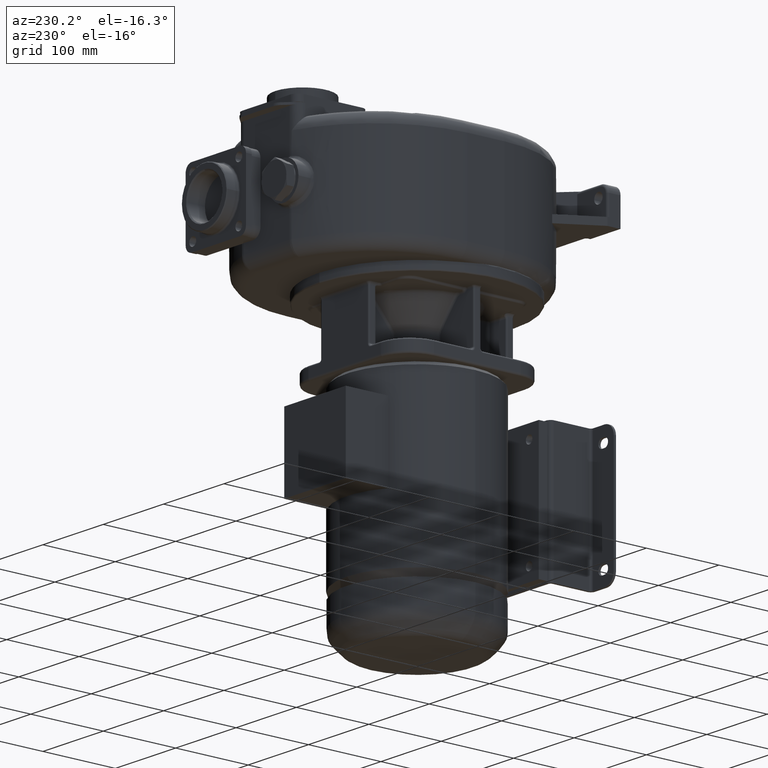
[diagram: clean part render]
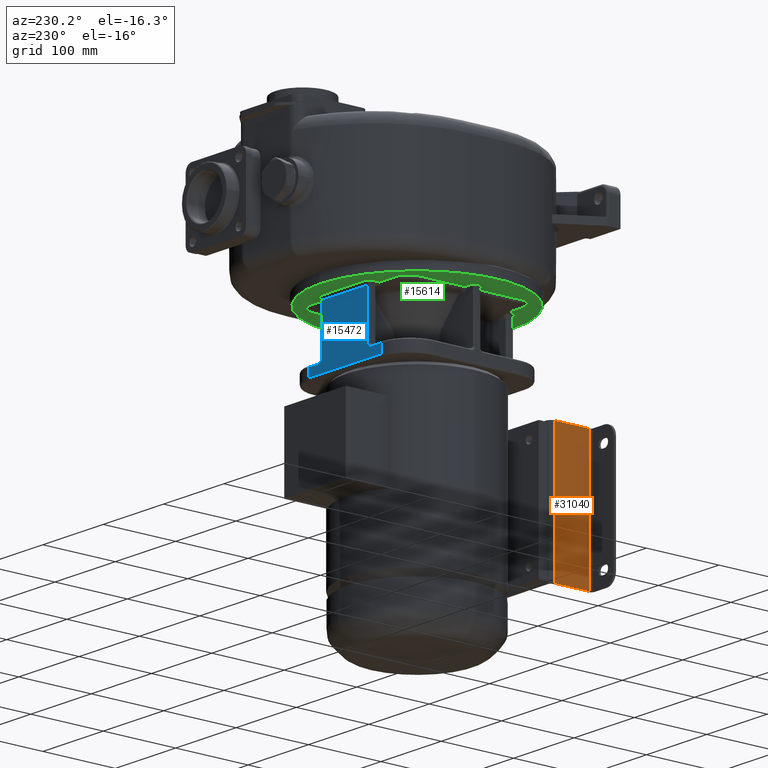
[diagram: same view with three faces highlighted in distinct colors, each labeled with its STEP entity id]
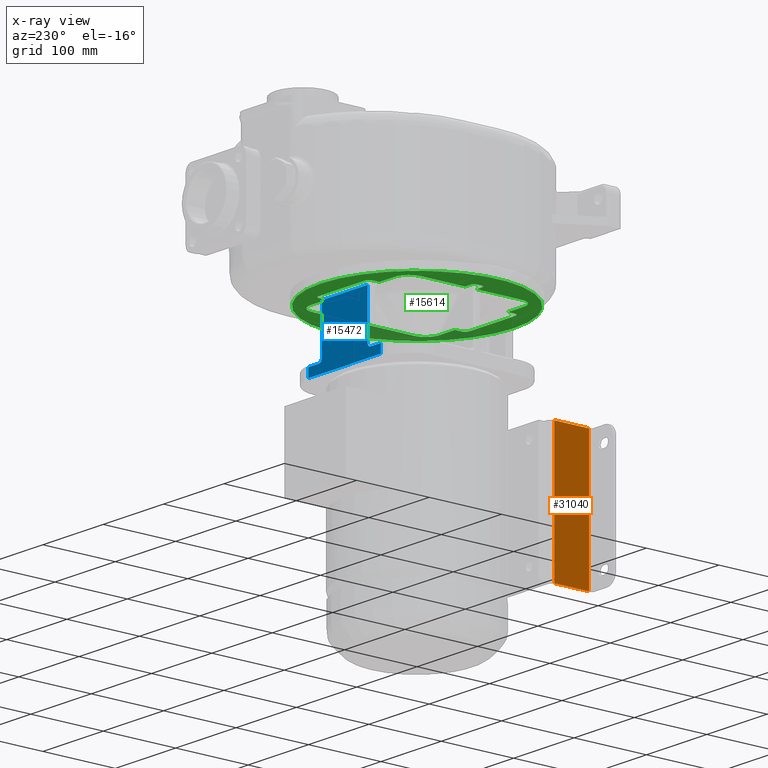
[diagram: x-ray of the same camera — body ghosted, the three highlighted faces saturated]
A machine part, auxiliary view with three faces highlighted in distinct colors.
The next image is the same camera in x-ray (body ghosted, the three faces saturated) — at least one of them is partly hidden behind the body in this view.
Their STEP definitions:

[orange] entity #31040 — the highlighted planar face has unit normal (-1, 0, 0).
#12520=DIRECTION('',(0.E0,-1.E0,0.E0));
#12521=VECTOR('',#12520,4.8E1);
#12522=CARTESIAN_POINT('',(-1.E2,-1.06E2,-2.23E2));
#12523=LINE('',#12522,#12521);
#12532=DIRECTION('',(0.E0,0.E0,1.E0));
#12533=VECTOR('',#12532,1.8E2);
#12534=CARTESIAN_POINT('',(-1.E2,-1.06E2,-2.23E2));
#12535=LINE('',#12534,#12533);
#12536=DIRECTION('',(0.E0,-1.E0,0.E0));
#12537=VECTOR('',#12536,4.8E1);
#12538=CARTESIAN_POINT('',(-1.E2,-1.06E2,-4.3E1));
#12539=LINE('',#12538,#12537);
#12570=DIRECTION('',(0.E0,0.E0,1.E0));
#12571=VECTOR('',#12570,1.8E2);
#12572=CARTESIAN_POINT('',(-1.E2,-1.54E2,-2.23E2));
#12573=LINE('',#12572,#12571);
#13334=CARTESIAN_POINT('',(-1.E2,-1.06E2,-2.23E2));
#13335=VERTEX_POINT('',#13334);
#13336=CARTESIAN_POINT('',(-1.E2,-1.54E2,-2.23E2));
#13337=VERTEX_POINT('',#13336);
#13350=CARTESIAN_POINT('',(-1.E2,-1.06E2,-4.3E1));
#13351=VERTEX_POINT('',#13350);
#13352=CARTESIAN_POINT('',(-1.E2,-1.54E2,-4.3E1));
#13353=VERTEX_POINT('',#13352);
#31027=CARTESIAN_POINT('',(-1.E2,-1.06E2,-2.23E2));
#31028=DIRECTION('',(-1.E0,0.E0,0.E0));
#31029=DIRECTION('',(0.E0,-1.E0,0.E0));
#31030=AXIS2_PLACEMENT_3D('',#31027,#31028,#31029);
#31031=PLANE('',#31030);
#31032=ORIENTED_EDGE('',*,*,#31017,.F.);
#31033=ORIENTED_EDGE('',*,*,#30750,.T.);
#31035=ORIENTED_EDGE('',*,*,#31034,.T.);
#31037=ORIENTED_EDGE('',*,*,#31036,.F.);
#31038=EDGE_LOOP('',(#31032,#31033,#31035,#31037));
#31039=FACE_OUTER_BOUND('',#31038,.F.);
#31040=ADVANCED_FACE('',(#31039),#31031,.T.);
#30750=EDGE_CURVE('',#13335,#13351,#12535,.T.);
#31017=EDGE_CURVE('',#13335,#13337,#12523,.T.);
#31034=EDGE_CURVE('',#13351,#13353,#12539,.T.);
#31036=EDGE_CURVE('',#13337,#13353,#12573,.T.);

[blue] entity #15472 — the highlighted planar face has unit normal (0, 1, 0).
#620=DIRECTION('',(-1.E0,0.E0,-1.035929512112E-12));
#621=VECTOR('',#620,1.699999999991E1);
#622=CARTESIAN_POINT('',(-4.300000000008E1,1.E2,1.300000000002E1));
#623=LINE('',#622,#621);
#624=DIRECTION('',(-3.268496584496E-13,0.E0,-1.E0));
#625=VECTOR('',#624,1.2E1);
#626=CARTESIAN_POINT('',(-5.999999999999E1,1.E2,1.3E1));
#627=LINE('',#626,#625);
#628=DIRECTION('',(1.E0,0.E0,0.E0));
#629=VECTOR('',#628,1.2E2);
#630=CARTESIAN_POINT('',(-6.E1,1.E2,1.E0));
#631=LINE('',#630,#629);
#632=DIRECTION('',(-1.E0,0.E0,2.068724276869E-12));
#633=VECTOR('',#632,1.699999999984E1);
#634=CARTESIAN_POINT('',(6.E1,1.E2,1.3E1));
#635=LINE('',#634,#633);
#636=CARTESIAN_POINT('',(4.3E1,1.E2,1.8E1));
#637=DIRECTION('',(0.E0,1.E0,0.E0));
#638=DIRECTION('',(0.E0,0.E0,-1.E0));
#639=AXIS2_PLACEMENT_3D('',#636,#637,#638);
#641=DIRECTION('',(1.854072451126E-13,0.E0,1.E0));
#642=VECTOR('',#641,6.399999999992E1);
#643=CARTESIAN_POINT('',(3.800000000002E1,1.E2,1.800000000008E1));
#644=LINE('',#643,#642);
#645=DIRECTION('',(1.E0,0.E0,0.E0));
#646=VECTOR('',#645,7.600000000003E1);
#647=CARTESIAN_POINT('',(-3.800000000001E1,1.E2,8.2E1));
#648=LINE('',#647,#646);
#649=DIRECTION('',(-3.597122599795E-13,0.E0,-1.E0));
#650=VECTOR('',#649,6.399999999983E1);
#651=CARTESIAN_POINT('',(-3.800000000001E1,1.E2,8.2E1));
#652=LINE('',#651,#650);
#653=CARTESIAN_POINT('',(-4.3E1,1.E2,1.8E1));
#654=DIRECTION('',(0.E0,1.E0,0.E0));
#655=DIRECTION('',(1.E0,0.E0,0.E0));
#656=AXIS2_PLACEMENT_3D('',#653,#654,#655);
#8334=DIRECTION('',(-1.657933050107E-13,0.E0,-1.E0));
#8335=VECTOR('',#8334,1.2E1);
#8336=CARTESIAN_POINT('',(6.E1,1.E2,1.3E1));
#8337=LINE('',#8336,#8335);
#13800=CARTESIAN_POINT('',(-6.E1,1.E2,1.E0));
#13802=VERTEX_POINT('',#13800);
#13805=CARTESIAN_POINT('',(6.E1,1.E2,1.E0));
#13806=VERTEX_POINT('',#13805);
#14098=CARTESIAN_POINT('',(6.E1,1.E2,1.3E1));
#14099=VERTEX_POINT('',#14098);
#14104=CARTESIAN_POINT('',(-4.300000000008E1,1.E2,1.300000000002E1));
#14105=CARTESIAN_POINT('',(-5.999999999999E1,1.E2,1.3E1));
#14106=VERTEX_POINT('',#14104);
#14107=VERTEX_POINT('',#14105);
#14112=CARTESIAN_POINT('',(4.3E1,1.E2,1.3E1));
#14113=CARTESIAN_POINT('',(3.8E1,1.E2,1.8E1));
#14114=VERTEX_POINT('',#14112);
#14115=VERTEX_POINT('',#14113);
#14116=CARTESIAN_POINT('',(3.800000000003E1,1.E2,8.2E1));
#14117=VERTEX_POINT('',#14116);
#14128=CARTESIAN_POINT('',(-3.800000000001E1,1.E2,8.2E1));
#14129=VERTEX_POINT('',#14128);
#14170=CARTESIAN_POINT('',(-3.800000000003E1,1.E2,1.800000000017E1));
#14171=VERTEX_POINT('',#14170);
#15447=CARTESIAN_POINT('',(-6.E1,1.E2,1.5E1));
#15448=DIRECTION('',(0.E0,1.E0,0.E0));
#15449=DIRECTION('',(1.E0,0.E0,0.E0));
#15450=AXIS2_PLACEMENT_3D('',#15447,#15448,#15449);
#15451=PLANE('',#15450);
#15453=ORIENTED_EDGE('',*,*,#15452,.T.);
#15454=ORIENTED_EDGE('',*,*,#15441,.T.);
#15455=ORIENTED_EDGE('',*,*,#15121,.T.);
#15457=ORIENTED_EDGE('',*,*,#15456,.F.);
#15459=ORIENTED_EDGE('',*,*,#15458,.T.);
#15461=ORIENTED_EDGE('',*,*,#15460,.T.);
#15463=ORIENTED_EDGE('',*,*,#15462,.T.);
#15465=ORIENTED_EDGE('',*,*,#15464,.F.);
#15467=ORIENTED_EDGE('',*,*,#15466,.T.);
#15469=ORIENTED_EDGE('',*,*,#15468,.T.);
#15470=EDGE_LOOP('',(#15453,#15454,#15455,#15457,#15459,#15461,#15463,#15465,
#15467,#15469));
#15471=FACE_OUTER_BOUND('',#15470,.F.);
#15472=ADVANCED_FACE('',(#15471),#15451,.T.);
#640=CIRCLE('',#639,5.E0);
#657=CIRCLE('',#656,5.E0);
#15121=EDGE_CURVE('',#13802,#13806,#631,.T.);
#15441=EDGE_CURVE('',#14107,#13802,#627,.T.);
#15452=EDGE_CURVE('',#14106,#14107,#623,.T.);
#15456=EDGE_CURVE('',#14099,#13806,#8337,.T.);
#15458=EDGE_CURVE('',#14099,#14114,#635,.T.);
#15460=EDGE_CURVE('',#14114,#14115,#640,.T.);
#15462=EDGE_CURVE('',#14115,#14117,#644,.T.);
#15464=EDGE_CURVE('',#14129,#14117,#648,.T.);
#15466=EDGE_CURVE('',#14129,#14171,#652,.T.);
#15468=EDGE_CURVE('',#14171,#14106,#657,.T.);

[green] entity #15614 — the highlighted planar face has unit normal (0, 0, -1).
#512=CARTESIAN_POINT('',(-9.8E1,-3.E0,8.6E1));
#513=DIRECTION('',(0.E0,0.E0,1.E0));
#514=DIRECTION('',(-1.E0,0.E0,0.E0));
#515=AXIS2_PLACEMENT_3D('',#512,#513,#514);
#532=CARTESIAN_POINT('',(-9.8E1,3.E0,8.6E1));
#533=DIRECTION('',(0.E0,0.E0,1.E0));
#534=DIRECTION('',(0.E0,1.E0,0.E0));
#535=AXIS2_PLACEMENT_3D('',#532,#533,#534);
#673=CARTESIAN_POINT('',(-3.8E1,9.8E1,8.6E1));
#674=DIRECTION('',(0.E0,0.E0,1.E0));
#675=DIRECTION('',(0.E0,1.E0,0.E0));
#676=AXIS2_PLACEMENT_3D('',#673,#674,#675);
#688=CARTESIAN_POINT('',(0.E0,0.E0,8.6E1));
#689=DIRECTION('',(0.E0,0.E0,1.E0));
#690=DIRECTION('',(0.E0,-1.E0,0.E0));
#691=AXIS2_PLACEMENT_3D('',#688,#689,#690);
#693=CARTESIAN_POINT('',(0.E0,0.E0,8.6E1));
#694=DIRECTION('',(0.E0,0.E0,1.E0));
#695=DIRECTION('',(0.E0,1.E0,0.E0));
#696=AXIS2_PLACEMENT_3D('',#693,#694,#695);
#698=DIRECTION('',(-1.E0,3.686999294781E-12,0.E0));
#699=VECTOR('',#698,9.127016653686E0);
#700=CARTESIAN_POINT('',(-8.887298334632E1,-8.E0,8.6E1));
#701=LINE('',#700,#699);
#702=DIRECTION('',(0.E0,1.E0,0.E0));
#703=VECTOR('',#702,5.999999999744E0);
#704=CARTESIAN_POINT('',(-1.03E2,-2.999999999871E0,8.6E1));
#705=LINE('',#704,#703);
#706=DIRECTION('',(1.E0,3.695076283312E-12,0.E0));
#707=VECTOR('',#706,9.127016653686E0);
#708=CARTESIAN_POINT('',(-9.800000000001E1,7.999999999966E0,8.6E1));
#709=LINE('',#708,#707);
#710=DIRECTION('',(1.810279524849E-12,1.E0,3.169868668626E-11));
#711=VECTOR('',#710,6.2E1);
#712=CARTESIAN_POINT('',(-8.887298334632E1,8.E0,8.6E1));
#713=LINE('',#712,#711);
#714=CARTESIAN_POINT('',(-8.887298334621E1,7.E1,8.600000000197E1));
#715=CARTESIAN_POINT('',(-8.887298292462E1,7.019225124129E1,8.600000022585E1));
#716=CARTESIAN_POINT('',(-8.886705014984E1,7.057716331394E1,8.599999989518E1));
#717=CARTESIAN_POINT('',(-8.884025804156E1,7.115620261269E1,8.600000002809E1));
#718=CARTESIAN_POINT('',(-8.879552366989E1,7.173558585011E1,8.599999999247E1));
#719=CARTESIAN_POINT('',(-8.873284137816E1,7.231447865814E1,8.600000000202E1));
#720=CARTESIAN_POINT('',(-8.865225597103E1,7.289195622053E1,8.599999999946E1));
#721=CARTESIAN_POINT('',(-8.855387021405E1,7.346712001126E1,8.600000000014E1));
#722=CARTESIAN_POINT('',(-8.843781111431E1,7.403913870114E1,8.599999999996E1));
#723=CARTESIAN_POINT('',(-8.830423424323E1,7.460723321140E1,8.600000000001E1));
#724=CARTESIAN_POINT('',(-8.815336211327E1,7.517047755815E1,8.6E1));
#725=CARTESIAN_POINT('',(-8.798553105066E1,7.572772744575E1,8.6E1));
#726=CARTESIAN_POINT('',(-8.780121349157E1,7.627778160958E1,8.6E1));
#727=CARTESIAN_POINT('',(-8.760053526486E1,7.682065004056E1,8.6E1));
#728=CARTESIAN_POINT('',(-8.738340615376E1,7.735656464176E1,8.6E1));
#729=CARTESIAN_POINT('',(-8.714971080429E1,7.788568805756E1,8.6E1));
#730=CARTESIAN_POINT('',(-8.689944965330E1,7.840820050466E1,8.6E1));
#731=CARTESIAN_POINT('',(-8.663240281648E1,7.892436997928E1,8.6E1));
#732=CARTESIAN_POINT('',(-8.634883306993E1,7.943340845090E1,8.6E1));
#733=CARTESIAN_POINT('',(-8.604931954349E1,7.993413887225E1,8.6E1));
#734=CARTESIAN_POINT('',(-8.573443577222E1,8.042559295013E1,8.6E1));
#735=CARTESIAN_POINT('',(-8.540458024301E1,8.090714638285E1,8.6E1));
#736=CARTESIAN_POINT('',(-8.506015704084E1,8.137821111602E1,8.6E1));
#737=CARTESIAN_POINT('',(-8.470177645221E1,8.183795610154E1,8.6E1));
#738=CARTESIAN_POINT('',(-8.433024982269E1,8.228541537491E1,8.6E1));
#739=CARTESIAN_POINT('',(-8.394640011537E1,8.271978884581E1,8.6E1));
#740=CARTESIAN_POINT('',(-8.355014926610E1,8.314133014853E1,8.6E1));
#741=CARTESIAN_POINT('',(-8.314132958331E1,8.355014976978E1,8.6E1));
#742=CARTESIAN_POINT('',(-8.271978862477E1,8.394640029533E1,8.6E1));
#743=CARTESIAN_POINT('',(-8.228541487756E1,8.433025028680E1,8.6E1));
#744=CARTESIAN_POINT('',(-8.183795472522E1,8.470177758588E1,8.6E1));
#745=CARTESIAN_POINT('',(-8.137820941363E1,8.506015830779E1,8.6E1));
#746=CARTESIAN_POINT('',(-8.090714489795E1,8.540458127587E1,8.6E1));
#747=CARTESIAN_POINT('',(-8.042559147485E1,8.573443673629E1,8.6E1));
#748=CARTESIAN_POINT('',(-7.993413735305E1,8.604932048566E1,8.6E1));
#749=CARTESIAN_POINT('',(-7.943340728063E1,8.634883377123E1,8.6E1));
#750=CARTESIAN_POINT('',(-7.892436962438E1,8.663240303351E1,8.6E1));
#751=CARTESIAN_POINT('',(-7.840820053559E1,8.689944962592E1,8.6E1));
#752=CARTESIAN_POINT('',(-7.788568819629E1,8.714971065549E1,8.6E1));
#753=CARTESIAN_POINT('',(-7.735656481633E1,8.738340602882E1,8.6E1));
#754=CARTESIAN_POINT('',(-7.682065020923E1,8.760053529485E1,8.6E1));
#755=CARTESIAN_POINT('',(-7.627778174463E1,8.780121347832E1,8.6E1));
#756=CARTESIAN_POINT('',(-7.572772823508E1,8.798553076626E1,8.6E1));
#757=CARTESIAN_POINT('',(-7.517047844222E1,8.815336183892E1,8.6E1));
#758=CARTESIAN_POINT('',(-7.460723363633E1,8.830423414197E1,8.600000000001E1));
#759=CARTESIAN_POINT('',(-7.403913876314E1,8.843781111229E1,8.599999999996E1));
#760=CARTESIAN_POINT('',(-7.346712009308E1,8.855387020475E1,8.600000000014E1));
#761=CARTESIAN_POINT('',(-7.289195638377E1,8.865225594360E1,8.599999999946E1));
#762=CARTESIAN_POINT('',(-7.231447877152E1,8.873284135930E1,8.600000000201E1));
#763=CARTESIAN_POINT('',(-7.173558586095E1,8.879552366713E1,8.599999999250E1));
#764=CARTESIAN_POINT('',(-7.115620256062E1,8.884025804686E1,8.600000002798E1));
#765=CARTESIAN_POINT('',(-7.057716327422E1,8.886705014757E1,8.599999989556E1));
#766=CARTESIAN_POINT('',(-7.019225122372E1,8.887298291935E1,8.600000022503E1));
#767=CARTESIAN_POINT('',(-7.E1,8.887298334621E1,8.600000000191E1));
#769=DIRECTION('',(1.E0,5.885480137434E-12,-7.363900942017E-11));
#770=VECTOR('',#769,2.6E1);
#771=CARTESIAN_POINT('',(-7.E1,8.887298334621E1,8.600000000191E1));
#772=LINE('',#771,#770);
#773=DIRECTION('',(2.087171686907E-12,1.E0,0.E0));
#774=VECTOR('',#773,9.127016653792E0);
#775=CARTESIAN_POINT('',(-4.4E1,8.887298334636E1,8.6E1));
#776=LINE('',#775,#774);
#777=DIRECTION('',(1.E0,0.E0,0.E0));
#778=VECTOR('',#777,7.600000000001E1);
#779=CARTESIAN_POINT('',(-3.800000000001E1,1.04E2,8.6E1));
#780=LINE('',#779,#778);
#781=DIRECTION('',(2.090285706582E-12,-1.E0,0.E0));
#782=VECTOR('',#781,9.127016653793E0);
#783=CARTESIAN_POINT('',(4.399999999998E1,9.800000000015E1,8.6E1));
#784=LINE('',#783,#782);
#785=DIRECTION('',(1.E0,-5.886573280105E-12,7.558917594417E-11));
#786=VECTOR('',#785,2.6E1);
#787=CARTESIAN_POINT('',(4.4E1,8.887298334636E1,8.6E1));
#788=LINE('',#787,#786);
#789=CARTESIAN_POINT('',(7.E1,8.887298334621E1,8.600000000197E1));
#790=CARTESIAN_POINT('',(7.019225124129E1,8.887298292462E1,8.600000022585E1));
#791=CARTESIAN_POINT('',(7.057716331394E1,8.886705014984E1,8.599999989518E1));
#792=CARTESIAN_POINT('',(7.115620261269E1,8.884025804156E1,8.600000002809E1));
#793=CARTESIAN_POINT('',(7.173558585011E1,8.879552366989E1,8.599999999247E1));
#794=CARTESIAN_POINT('',(7.231447865814E1,8.873284137816E1,8.600000000202E1));
#795=CARTESIAN_POINT('',(7.289195622053E1,8.865225597103E1,8.599999999946E1));
#796=CARTESIAN_POINT('',(7.346712001126E1,8.855387021405E1,8.600000000014E1));
#797=CARTESIAN_POINT('',(7.403913870114E1,8.843781111431E1,8.599999999996E1));
#798=CARTESIAN_POINT('',(7.460723321140E1,8.830423424323E1,8.600000000001E1));
#799=CARTESIAN_POINT('',(7.517047755815E1,8.815336211327E1,8.6E1));
#800=CARTESIAN_POINT('',(7.572772744575E1,8.798553105066E1,8.6E1));
#801=CARTESIAN_POINT('',(7.627778160958E1,8.780121349157E1,8.6E1));
#802=CARTESIAN_POINT('',(7.682065004056E1,8.760053526486E1,8.6E1));
#803=CARTESIAN_POINT('',(7.735656464176E1,8.738340615376E1,8.6E1));
#804=CARTESIAN_POINT('',(7.788568805756E1,8.714971080429E1,8.6E1));
#805=CARTESIAN_POINT('',(7.840820050466E1,8.689944965330E1,8.6E1));
#806=CARTESIAN_POINT('',(7.892436997928E1,8.663240281648E1,8.6E1));
#807=CARTESIAN_POINT('',(7.943340845090E1,8.634883306993E1,8.6E1));
#808=CARTESIAN_POINT('',(7.993413887225E1,8.604931954349E1,8.6E1));
#809=CARTESIAN_POINT('',(8.042559295013E1,8.573443577222E1,8.6E1));
#810=CARTESIAN_POINT('',(8.090714638285E1,8.540458024301E1,8.6E1));
#811=CARTESIAN_POINT('',(8.137821111601E1,8.506015704084E1,8.6E1));
#812=CARTESIAN_POINT('',(8.183795610154E1,8.470177645221E1,8.6E1));
#813=CARTESIAN_POINT('',(8.228541537491E1,8.433024982269E1,8.6E1));
#814=CARTESIAN_POINT('',(8.271978884581E1,8.394640011537E1,8.6E1));
#815=CARTESIAN_POINT('',(8.314133014852E1,8.355014926610E1,8.6E1));
#816=CARTESIAN_POINT('',(8.355014976978E1,8.314132958331E1,8.6E1));
#817=CARTESIAN_POINT('',(8.394640029533E1,8.271978862477E1,8.6E1));
#818=CARTESIAN_POINT('',(8.433025028680E1,8.228541487756E1,8.6E1));
#819=CARTESIAN_POINT('',(8.470177758588E1,8.183795472523E1,8.6E1));
#820=CARTESIAN_POINT('',(8.506015830779E1,8.137820941363E1,8.6E1));
#821=CARTESIAN_POINT('',(8.540458127587E1,8.090714489795E1,8.6E1));
#822=CARTESIAN_POINT('',(8.573443673629E1,8.042559147485E1,8.6E1));
#823=CARTESIAN_POINT('',(8.604932048566E1,7.993413735306E1,8.6E1));
#824=CARTESIAN_POINT('',(8.634883377123E1,7.943340728063E1,8.6E1));
#825=CARTESIAN_POINT('',(8.663240303351E1,7.892436962438E1,8.6E1));
#826=CARTESIAN_POINT('',(8.689944962592E1,7.840820053559E1,8.6E1));
#827=CARTESIAN_POINT('',(8.714971065549E1,7.788568819629E1,8.6E1));
#828=CARTESIAN_POINT('',(8.738340602882E1,7.735656481633E1,8.6E1));
#829=CARTESIAN_POINT('',(8.760053529484E1,7.682065020924E1,8.6E1));
#830=CARTESIAN_POINT('',(8.780121347832E1,7.627778174463E1,8.6E1));
#831=CARTESIAN_POINT('',(8.798553076626E1,7.572772823508E1,8.6E1));
#832=CARTESIAN_POINT('',(8.815336183892E1,7.517047844222E1,8.6E1));
#833=CARTESIAN_POINT('',(8.830423414197E1,7.460723363633E1,8.600000000001E1));
#834=CARTESIAN_POINT('',(8.843781111229E1,7.403913876314E1,8.599999999996E1));
#835=CARTESIAN_POINT('',(8.855387020475E1,7.346712009308E1,8.600000000014E1));
#836=CARTESIAN_POINT('',(8.865225594360E1,7.289195638377E1,8.599999999946E1));
#837=CARTESIAN_POINT('',(8.873284135930E1,7.231447877152E1,8.600000000201E1));
#838=CARTESIAN_POINT('',(8.879552366713E1,7.173558586095E1,8.599999999250E1));
#839=CARTESIAN_POINT('',(8.884025804686E1,7.115620256062E1,8.600000002798E1));
#840=CARTESIAN_POINT('',(8.886705014757E1,7.057716327422E1,8.599999989556E1));
#841=CARTESIAN_POINT('',(8.887298291935E1,7.019225122372E1,8.600000022503E1));
#842=CARTESIAN_POINT('',(8.887298334621E1,7.E1,8.600000000191E1));
#844=DIRECTION('',(1.810279524849E-12,-1.E0,-3.088087491814E-11));
#845=VECTOR('',#844,6.2E1);
#846=CARTESIAN_POINT('',(8.887298334621E1,7.E1,8.600000000191E1));
#847=LINE('',#846,#845);
#848=DIRECTION('',(1.E0,-3.686220789863E-12,0.E0));
#849=VECTOR('',#848,9.127016653686E0);
#850=CARTESIAN_POINT('',(8.887298334632E1,8.E0,8.6E1));
#851=LINE('',#850,#849);
#852=DIRECTION('',(0.E0,-1.E0,0.E0));
#853=VECTOR('',#852,5.999999999744E0);
#854=CARTESIAN_POINT('',(1.03E2,2.999999999871E0,8.6E1));
#855=LINE('',#854,#853);
#856=DIRECTION('',(-1.E0,-3.696535980035E-12,0.E0));
#857=VECTOR('',#856,9.127016653686E0);
#858=CARTESIAN_POINT('',(9.800000000001E1,-7.999999999966E0,8.6E1));
#859=LINE('',#858,#857);
#860=DIRECTION('',(-1.810737939518E-12,-1.E0,3.169868668626E-11));
#861=VECTOR('',#860,6.2E1);
#862=CARTESIAN_POINT('',(8.887298334632E1,-8.E0,8.6E1));
#863=LINE('',#862,#861);
#864=CARTESIAN_POINT('',(8.887298334621E1,-7.E1,8.600000000197E1));
#865=CARTESIAN_POINT('',(8.887298292462E1,-7.019225124129E1,8.600000022585E1));
#866=CARTESIAN_POINT('',(8.886705014984E1,-7.057716331394E1,8.599999989518E1));
#867=CARTESIAN_POINT('',(8.884025804156E1,-7.115620261269E1,8.600000002809E1));
#868=CARTESIAN_POINT('',(8.879552366989E1,-7.173558585011E1,8.599999999247E1));
#869=CARTESIAN_POINT('',(8.873284137816E1,-7.231447865813E1,8.600000000202E1));
#870=CARTESIAN_POINT('',(8.865225597103E1,-7.289195622053E1,8.599999999946E1));
#871=CARTESIAN_POINT('',(8.855387021405E1,-7.346712001125E1,8.600000000014E1));
#872=CARTESIAN_POINT('',(8.843781111431E1,-7.403913870114E1,8.599999999996E1));
#873=CARTESIAN_POINT('',(8.830423424323E1,-7.460723321140E1,8.600000000001E1));
#874=CARTESIAN_POINT('',(8.815336211327E1,-7.517047755815E1,8.6E1));
#875=CARTESIAN_POINT('',(8.798553105066E1,-7.572772744575E1,8.6E1));
#876=CARTESIAN_POINT('',(8.780121349157E1,-7.627778160958E1,8.6E1));
#877=CARTESIAN_POINT('',(8.760053526486E1,-7.682065004056E1,8.6E1));
#878=CARTESIAN_POINT('',(8.738340615376E1,-7.735656464176E1,8.6E1));
#879=CARTESIAN_POINT('',(8.714971080429E1,-7.788568805755E1,8.6E1));
#880=CARTESIAN_POINT('',(8.689944965330E1,-7.840820050466E1,8.6E1));
#881=CARTESIAN_POINT('',(8.663240281648E1,-7.892436997928E1,8.6E1));
#882=CARTESIAN_POINT('',(8.634883306993E1,-7.943340845090E1,8.6E1));
#883=CARTESIAN_POINT('',(8.604931954349E1,-7.993413887225E1,8.6E1));
#884=CARTESIAN_POINT('',(8.573443577222E1,-8.042559295013E1,8.6E1));
#885=CARTESIAN_POINT('',(8.540458024302E1,-8.090714638285E1,8.6E1));
#886=CARTESIAN_POINT('',(8.506015704084E1,-8.137821111601E1,8.6E1));
#887=CARTESIAN_POINT('',(8.470177645221E1,-8.183795610154E1,8.6E1));
#888=CARTESIAN_POINT('',(8.433024982270E1,-8.228541537491E1,8.6E1));
#889=CARTESIAN_POINT('',(8.394640011537E1,-8.271978884580E1,8.6E1));
#890=CARTESIAN_POINT('',(8.355014926610E1,-8.314133014852E1,8.6E1));
#891=CARTESIAN_POINT('',(8.314132958331E1,-8.355014976978E1,8.6E1));
#892=CARTESIAN_POINT('',(8.271978862477E1,-8.394640029533E1,8.6E1));
#893=CARTESIAN_POINT('',(8.228541487756E1,-8.433025028680E1,8.6E1));
#894=CARTESIAN_POINT('',(8.183795472523E1,-8.470177758588E1,8.6E1));
#895=CARTESIAN_POINT('',(8.137820941363E1,-8.506015830779E1,8.6E1));
#896=CARTESIAN_POINT('',(8.090714489795E1,-8.540458127587E1,8.6E1));
#897=CARTESIAN_POINT('',(8.042559147485E1,-8.573443673629E1,8.6E1));
#898=CARTESIAN_POINT('',(7.993413735306E1,-8.604932048566E1,8.6E1));
#899=CARTESIAN_POINT('',(7.943340728063E1,-8.634883377123E1,8.6E1));
#900=CARTESIAN_POINT('',(7.892436962438E1,-8.663240303351E1,8.6E1));
#901=CARTESIAN_POINT('',(7.840820053559E1,-8.689944962592E1,8.6E1));
#902=CARTESIAN_POINT('',(7.788568819629E1,-8.714971065549E1,8.6E1));
#903=CARTESIAN_POINT('',(7.735656481633E1,-8.738340602882E1,8.6E1));
#904=CARTESIAN_POINT('',(7.682065020923E1,-8.760053529484E1,8.6E1));
#905=CARTESIAN_POINT('',(7.627778174463E1,-8.780121347832E1,8.6E1));
#906=CARTESIAN_POINT('',(7.572772823508E1,-8.798553076626E1,8.6E1));
#907=CARTESIAN_POINT('',(7.517047844222E1,-8.815336183892E1,8.6E1));
#908=CARTESIAN_POINT('',(7.460723363633E1,-8.830423414197E1,8.600000000001E1));
#909=CARTESIAN_POINT('',(7.403913876314E1,-8.843781111229E1,8.599999999996E1));
#910=CARTESIAN_POINT('',(7.346712009308E1,-8.855387020475E1,8.600000000014E1));
#911=CARTESIAN_POINT('',(7.289195638377E1,-8.865225594360E1,8.599999999946E1));
#912=CARTESIAN_POINT('',(7.231447877152E1,-8.873284135930E1,8.600000000201E1));
#913=CARTESIAN_POINT('',(7.173558586095E1,-8.879552366713E1,8.599999999250E1));
#914=CARTESIAN_POINT('',(7.115620256062E1,-8.884025804686E1,8.600000002798E1));
#915=CARTESIAN_POINT('',(7.057716327422E1,-8.886705014757E1,8.599999989556E1));
#916=CARTESIAN_POINT('',(7.019225122372E1,-8.887298291935E1,8.600000022503E1));
#917=CARTESIAN_POINT('',(7.E1,-8.887298334621E1,8.600000000191E1));
#919=DIRECTION('',(-1.E0,-5.885480137434E-12,-7.363900942017E-11));
#920=VECTOR('',#919,2.6E1);
#921=CARTESIAN_POINT('',(7.E1,-8.887298334621E1,8.600000000191E1));
#922=LINE('',#921,#920);
#923=DIRECTION('',(-2.086393181989E-12,-1.E0,0.E0));
#924=VECTOR('',#923,9.127016653792E0);
#925=CARTESIAN_POINT('',(4.4E1,-8.887298334636E1,8.6E1));
#926=LINE('',#925,#924);
#927=DIRECTION('',(-1.E0,0.E0,0.E0));
#928=VECTOR('',#927,7.600000000001E1);
#929=CARTESIAN_POINT('',(3.800000000001E1,-1.04E2,8.6E1));
#930=LINE('',#929,#928);
#931=DIRECTION('',(-2.090285706582E-12,1.E0,0.E0));
#932=VECTOR('',#931,9.127016653793E0);
#933=CARTESIAN_POINT('',(-4.399999999998E1,-9.800000000015E1,8.6E1));
#934=LINE('',#933,#932);
#935=DIRECTION('',(-1.E0,5.886026708770E-12,7.558917594417E-11));
#936=VECTOR('',#935,2.6E1);
#937=CARTESIAN_POINT('',(-4.4E1,-8.887298334636E1,8.6E1));
#938=LINE('',#937,#936);
#939=CARTESIAN_POINT('',(-7.E1,-8.887298334621E1,8.600000000197E1));
#940=CARTESIAN_POINT('',(-7.019225124129E1,-8.887298292462E1,8.600000022585E1));
#941=CARTESIAN_POINT('',(-7.057716331394E1,-8.886705014984E1,8.599999989518E1));
#942=CARTESIAN_POINT('',(-7.115620261269E1,-8.884025804156E1,8.600000002809E1));
#943=CARTESIAN_POINT('',(-7.173558585011E1,-8.879552366989E1,8.599999999247E1));
#944=CARTESIAN_POINT('',(-7.231447865813E1,-8.873284137816E1,8.600000000202E1));
#945=CARTESIAN_POINT('',(-7.289195622053E1,-8.865225597103E1,8.599999999946E1));
#946=CARTESIAN_POINT('',(-7.346712001125E1,-8.855387021405E1,8.600000000014E1));
#947=CARTESIAN_POINT('',(-7.403913870114E1,-8.843781111431E1,8.599999999996E1));
#948=CARTESIAN_POINT('',(-7.460723321140E1,-8.830423424323E1,8.600000000001E1));
#949=CARTESIAN_POINT('',(-7.517047755815E1,-8.815336211327E1,8.6E1));
#950=CARTESIAN_POINT('',(-7.572772744575E1,-8.798553105066E1,8.6E1));
#951=CARTESIAN_POINT('',(-7.627778160958E1,-8.780121349157E1,8.6E1));
#952=CARTESIAN_POINT('',(-7.682065004056E1,-8.760053526486E1,8.6E1));
#953=CARTESIAN_POINT('',(-7.735656464176E1,-8.738340615376E1,8.6E1));
#954=CARTESIAN_POINT('',(-7.788568805756E1,-8.714971080429E1,8.6E1));
#955=CARTESIAN_POINT('',(-7.840820050466E1,-8.689944965330E1,8.6E1));
#956=CARTESIAN_POINT('',(-7.892436997928E1,-8.663240281648E1,8.6E1));
#957=CARTESIAN_POINT('',(-7.943340845090E1,-8.634883306993E1,8.6E1));
#958=CARTESIAN_POINT('',(-7.993413887225E1,-8.604931954349E1,8.6E1));
#959=CARTESIAN_POINT('',(-8.042559295013E1,-8.573443577222E1,8.6E1));
#960=CARTESIAN_POINT('',(-8.090714638285E1,-8.540458024301E1,8.6E1));
#961=CARTESIAN_POINT('',(-8.137821111601E1,-8.506015704084E1,8.6E1));
#962=CARTESIAN_POINT('',(-8.183795610154E1,-8.470177645221E1,8.6E1));
#963=CARTESIAN_POINT('',(-8.228541537491E1,-8.433024982269E1,8.6E1));
#964=CARTESIAN_POINT('',(-8.271978884581E1,-8.394640011537E1,8.6E1));
#965=CARTESIAN_POINT('',(-8.314133014852E1,-8.355014926610E1,8.6E1));
#966=CARTESIAN_POINT('',(-8.355014976978E1,-8.314132958331E1,8.6E1));
#967=CARTESIAN_POINT('',(-8.394640029533E1,-8.271978862477E1,8.6E1));
#968=CARTESIAN_POINT('',(-8.433025028680E1,-8.228541487756E1,8.6E1));
#969=CARTESIAN_POINT('',(-8.470177758588E1,-8.183795472523E1,8.6E1));
#970=CARTESIAN_POINT('',(-8.506015830779E1,-8.137820941363E1,8.6E1));
#971=CARTESIAN_POINT('',(-8.540458127587E1,-8.090714489795E1,8.6E1));
#972=CARTESIAN_POINT('',(-8.573443673629E1,-8.042559147485E1,8.6E1));
#973=CARTESIAN_POINT('',(-8.604932048566E1,-7.993413735306E1,8.6E1));
#974=CARTESIAN_POINT('',(-8.634883377123E1,-7.943340728063E1,8.6E1));
#975=CARTESIAN_POINT('',(-8.663240303351E1,-7.892436962438E1,8.6E1));
#976=CARTESIAN_POINT('',(-8.689944962592E1,-7.840820053559E1,8.6E1));
#977=CARTESIAN_POINT('',(-8.714971065549E1,-7.788568819629E1,8.6E1));
#978=CARTESIAN_POINT('',(-8.738340602882E1,-7.735656481633E1,8.6E1));
#979=CARTESIAN_POINT('',(-8.760053529484E1,-7.682065020923E1,8.6E1));
#980=CARTESIAN_POINT('',(-8.780121347832E1,-7.627778174463E1,8.6E1));
#981=CARTESIAN_POINT('',(-8.798553076626E1,-7.572772823508E1,8.6E1));
#982=CARTESIAN_POINT('',(-8.815336183892E1,-7.517047844222E1,8.6E1));
#983=CARTESIAN_POINT('',(-8.830423414197E1,-7.460723363633E1,8.600000000001E1));
#984=CARTESIAN_POINT('',(-8.843781111229E1,-7.403913876314E1,8.599999999996E1));
#985=CARTESIAN_POINT('',(-8.855387020475E1,-7.346712009308E1,8.600000000014E1));
#986=CARTESIAN_POINT('',(-8.865225594360E1,-7.289195638377E1,8.599999999946E1));
#987=CARTESIAN_POINT('',(-8.873284135930E1,-7.231447877152E1,8.600000000201E1));
#988=CARTESIAN_POINT('',(-8.879552366713E1,-7.173558586095E1,8.599999999250E1));
#989=CARTESIAN_POINT('',(-8.884025804686E1,-7.115620256062E1,8.600000002798E1));
#990=CARTESIAN_POINT('',(-8.886705014757E1,-7.057716327422E1,8.599999989556E1));
#991=CARTESIAN_POINT('',(-8.887298291935E1,-7.019225122372E1,8.600000022503E1));
#992=CARTESIAN_POINT('',(-8.887298334621E1,-7.E1,8.600000000191E1));
#994=DIRECTION('',(-1.810050317515E-12,1.E0,-3.088087491814E-11));
#995=VECTOR('',#994,6.2E1);
#996=CARTESIAN_POINT('',(-8.887298334621E1,-7.E1,8.600000000191E1));
#997=LINE('',#996,#995);
#8212=CARTESIAN_POINT('',(3.8E1,9.8E1,8.6E1));
#8213=DIRECTION('',(0.E0,0.E0,1.E0));
#8214=DIRECTION('',(1.E0,0.E0,0.E0));
#8215=AXIS2_PLACEMENT_3D('',#8212,#8213,#8214);
#8508=CARTESIAN_POINT('',(9.8E1,3.E0,8.6E1));
#8509=DIRECTION('',(0.E0,0.E0,1.E0));
#8510=DIRECTION('',(1.E0,0.E0,0.E0));
#8511=AXIS2_PLACEMENT_3D('',#8508,#8509,#8510);
#8528=CARTESIAN_POINT('',(9.8E1,-3.E0,8.6E1));
#8529=DIRECTION('',(0.E0,0.E0,1.E0));
#8530=DIRECTION('',(0.E0,-1.E0,0.E0));
#8531=AXIS2_PLACEMENT_3D('',#8528,#8529,#8530);
#9425=CARTESIAN_POINT('',(-3.8E1,-9.8E1,8.6E1));
#9426=DIRECTION('',(0.E0,0.E0,1.E0));
#9427=DIRECTION('',(-1.E0,0.E0,0.E0));
#9428=AXIS2_PLACEMENT_3D('',#9425,#9426,#9427);
#9824=CARTESIAN_POINT('',(3.8E1,-9.8E1,8.6E1));
#9825=DIRECTION('',(0.E0,0.E0,1.E0));
#9826=DIRECTION('',(0.E0,-1.E0,0.E0));
#9827=AXIS2_PLACEMENT_3D('',#9824,#9825,#9826);
#13827=VERTEX_POINT('',#714);
#13828=VERTEX_POINT('',#767);
#13829=VERTEX_POINT('',#939);
#13830=VERTEX_POINT('',#992);
#13831=VERTEX_POINT('',#864);
#13832=VERTEX_POINT('',#917);
#13833=VERTEX_POINT('',#789);
#13834=VERTEX_POINT('',#842);
#13933=CARTESIAN_POINT('',(-4.4E1,8.887298334636E1,8.6E1));
#13934=VERTEX_POINT('',#13933);
#13935=CARTESIAN_POINT('',(-4.4E1,-8.887298334636E1,8.6E1));
#13936=VERTEX_POINT('',#13935);
#13937=CARTESIAN_POINT('',(4.4E1,-8.887298334636E1,8.6E1));
#13938=VERTEX_POINT('',#13937);
#13939=CARTESIAN_POINT('',(4.4E1,8.887298334636E1,8.6E1));
#13940=VERTEX_POINT('',#13939);
#14122=CARTESIAN_POINT('',(-4.399999999998E1,9.800000000015E1,8.6E1));
#14123=VERTEX_POINT('',#14122);
#14124=CARTESIAN_POINT('',(-3.800000000001E1,1.04E2,8.6E1));
#14125=CARTESIAN_POINT('',(3.800000000001E1,1.04E2,8.6E1));
#14126=VERTEX_POINT('',#14124);
#14127=VERTEX_POINT('',#14125);
#14130=CARTESIAN_POINT('',(4.399999999998E1,9.800000000015E1,8.6E1));
#14131=VERTEX_POINT('',#14130);
#14132=CARTESIAN_POINT('',(4.399999999998E1,-9.800000000015E1,8.6E1));
#14133=VERTEX_POINT('',#14132);
#14134=CARTESIAN_POINT('',(3.800000000001E1,-1.04E2,8.6E1));
#14135=CARTESIAN_POINT('',(-3.800000000001E1,-1.04E2,8.6E1));
#14136=VERTEX_POINT('',#14134);
#14137=VERTEX_POINT('',#14135);
#14140=CARTESIAN_POINT('',(-4.399999999998E1,-9.800000000015E1,8.6E1));
#14141=VERTEX_POINT('',#14140);
#14194=CARTESIAN_POINT('',(-8.887298334621E1,8.E0,8.6E1));
#14195=VERTEX_POINT('',#14194);
#14220=CARTESIAN_POINT('',(-8.887298334621E1,-8.E0,8.6E1));
#14221=VERTEX_POINT('',#14220);
#14246=CARTESIAN_POINT('',(8.887298334621E1,8.E0,8.6E1));
#14247=VERTEX_POINT('',#14246);
#14272=CARTESIAN_POINT('',(8.887298334621E1,-8.E0,8.6E1));
#14273=VERTEX_POINT('',#14272);
#14276=CARTESIAN_POINT('',(-1.03E2,-3.E0,8.6E1));
#14277=VERTEX_POINT('',#14276);
#14278=CARTESIAN_POINT('',(-9.8E1,-8.E0,8.6E1));
#14279=VERTEX_POINT('',#14278);
#14284=CARTESIAN_POINT('',(9.8E1,-8.E0,8.6E1));
#14285=VERTEX_POINT('',#14284);
#14286=CARTESIAN_POINT('',(1.03E2,-3.E0,8.6E1));
#14287=VERTEX_POINT('',#14286);
#14288=CARTESIAN_POINT('',(1.03E2,3.E0,8.6E1));
#14289=VERTEX_POINT('',#14288);
#14290=CARTESIAN_POINT('',(9.8E1,8.E0,8.6E1));
#14291=VERTEX_POINT('',#14290);
#14296=CARTESIAN_POINT('',(-9.8E1,8.E0,8.6E1));
#14297=VERTEX_POINT('',#14296);
#14298=CARTESIAN_POINT('',(-1.03E2,3.E0,8.6E1));
#14299=VERTEX_POINT('',#14298);
#14304=CARTESIAN_POINT('',(-5.651639236182E-14,-1.33E2,8.6E1));
#14305=CARTESIAN_POINT('',(7.280421479048E-14,1.33E2,8.6E1));
#14306=VERTEX_POINT('',#14304);
#14307=VERTEX_POINT('',#14305);
#15543=CARTESIAN_POINT('',(0.E0,0.E0,8.6E1));
#15544=DIRECTION('',(0.E0,0.E0,-1.E0));
#15545=DIRECTION('',(0.E0,1.E0,0.E0));
#15546=AXIS2_PLACEMENT_3D('',#15543,#15544,#15545);
#15547=PLANE('',#15546);
#15549=ORIENTED_EDGE('',*,*,#15548,.T.);
#15551=ORIENTED_EDGE('',*,*,#15550,.T.);
#15552=EDGE_LOOP('',(#15549,#15551));
#15553=FACE_OUTER_BOUND('',#15552,.F.);
#15554=ORIENTED_EDGE('',*,*,#15288,.T.);
#15555=ORIENTED_EDGE('',*,*,#15304,.F.);
#15556=ORIENTED_EDGE('',*,*,#15319,.T.);
#15557=ORIENTED_EDGE('',*,*,#15333,.F.);
#15559=ORIENTED_EDGE('',*,*,#15558,.T.);
#15561=ORIENTED_EDGE('',*,*,#15560,.T.);
#15563=ORIENTED_EDGE('',*,*,#15562,.T.);
#15565=ORIENTED_EDGE('',*,*,#15564,.T.);
#15567=ORIENTED_EDGE('',*,*,#15566,.T.);
#15568=ORIENTED_EDGE('',*,*,#15522,.F.);
#15569=ORIENTED_EDGE('',*,*,#15534,.T.);
#15571=ORIENTED_EDGE('',*,*,#15570,.F.);
#15573=ORIENTED_EDGE('',*,*,#15572,.T.);
#15575=ORIENTED_EDGE('',*,*,#15574,.T.);
#15577=ORIENTED_EDGE('',*,*,#15576,.T.);
#15579=ORIENTED_EDGE('',*,*,#15578,.T.);
#15581=ORIENTED_EDGE('',*,*,#15580,.T.);
#15583=ORIENTED_EDGE('',*,*,#15582,.F.);
#15585=ORIENTED_EDGE('',*,*,#15584,.T.);
#15587=ORIENTED_EDGE('',*,*,#15586,.F.);
#15589=ORIENTED_EDGE('',*,*,#15588,.T.);
#15591=ORIENTED_EDGE('',*,*,#15590,.T.);
#15593=ORIENTED_EDGE('',*,*,#15592,.T.);
#15595=ORIENTED_EDGE('',*,*,#15594,.T.);
#15597=ORIENTED_EDGE('',*,*,#15596,.T.);
#15599=ORIENTED_EDGE('',*,*,#15598,.F.);
#15601=ORIENTED_EDGE('',*,*,#15600,.T.);
#15603=ORIENTED_EDGE('',*,*,#15602,.F.);
#15605=ORIENTED_EDGE('',*,*,#15604,.T.);
#15607=ORIENTED_EDGE('',*,*,#15606,.T.);
#15609=ORIENTED_EDGE('',*,*,#15608,.T.);
#15611=ORIENTED_EDGE('',*,*,#15610,.T.);
#15612=EDGE_LOOP('',(#15554,#15555,#15556,#15557,#15559,#15561,#15563,#15565,
#15567,#15568,#15569,#15571,#15573,#15575,#15577,#15579,#15581,#15583,#15585,
#15587,#15589,#15591,#15593,#15595,#15597,#15599,#15601,#15603,#15605,#15607,
#15609,#15611));
#15613=FACE_BOUND('',#15612,.F.);
#15614=ADVANCED_FACE('',(#15553,#15613),#15547,.T.);
#516=CIRCLE('',#515,5.E0);
#536=CIRCLE('',#535,5.E0);
#677=CIRCLE('',#676,6.E0);
#692=CIRCLE('',#691,1.33E2);
#697=CIRCLE('',#696,1.33E2);
#768=B_SPLINE_CURVE_WITH_KNOTS('',3,(#714,#715,#716,#717,#718,#719,#720,#721,
#722,#723,#724,#725,#726,#727,#728,#729,#730,#731,#732,#733,#734,#735,#736,#737,
#738,#739,#740,#741,#742,#743,#744,#745,#746,#747,#748,#749,#750,#751,#752,#753,
#754,#755,#756,#757,#758,#759,#760,#761,#762,#763,#764,#765,#766,#767),
.UNSPECIFIED.,.F.,.F.,(4,1,1,1,1,1,1,1,1,1,1,1,1,1,1,1,1,1,1,1,1,1,1,1,1,1,1,1,
1,1,1,1,1,1,1,1,1,1,1,1,1,1,1,1,1,1,1,1,1,1,1,4),(0.E0,1.960784313725E-2,
3.921568627451E-2,5.882352941176E-2,7.843137254902E-2,9.803921568627E-2,
1.176470588235E-1,1.372549019608E-1,1.568627450980E-1,1.764705882353E-1,
1.960784313725E-1,2.156862745098E-1,2.352941176471E-1,2.549019607843E-1,
2.745098039216E-1,2.941176470588E-1,3.137254901961E-1,3.333333333333E-1,
3.529411764706E-1,3.725490196078E-1,3.921568627451E-1,4.117647058824E-1,
4.313725490196E-1,4.509803921569E-1,4.705882352941E-1,4.901960784314E-1,
5.098039215686E-1,5.294117647059E-1,5.490196078431E-1,5.686274509804E-1,
5.882352941176E-1,6.078431372549E-1,6.274509803922E-1,6.470588235294E-1,
6.666666666667E-1,6.862745098039E-1,7.058823529412E-1,7.254901960784E-1,
7.450980392157E-1,7.647058823529E-1,7.843137254902E-1,8.039215686275E-1,
8.235294117647E-1,8.431372549020E-1,8.627450980392E-1,8.823529411765E-1,
9.019607843137E-1,9.215686274510E-1,9.411764705882E-1,9.607843137255E-1,
9.803921568627E-1,1.E0),.UNSPECIFIED.);
#843=B_SPLINE_CURVE_WITH_KNOTS('',3,(#789,#790,#791,#792,#793,#794,#795,#796,
#797,#798,#799,#800,#801,#802,#803,#804,#805,#806,#807,#808,#809,#810,#811,#812,
#813,#814,#815,#816,#817,#818,#819,#820,#821,#822,#823,#824,#825,#826,#827,#828,
#829,#830,#831,#832,#833,#834,#835,#836,#837,#838,#839,#840,#841,#842),
.UNSPECIFIED.,.F.,.F.,(4,1,1,1,1,1,1,1,1,1,1,1,1,1,1,1,1,1,1,1,1,1,1,1,1,1,1,1,
1,1,1,1,1,1,1,1,1,1,1,1,1,1,1,1,1,1,1,1,1,1,1,4),(0.E0,1.960784313725E-2,
3.921568627451E-2,5.882352941176E-2,7.843137254902E-2,9.803921568627E-2,
1.176470588235E-1,1.372549019608E-1,1.568627450980E-1,1.764705882353E-1,
1.960784313725E-1,2.156862745098E-1,2.352941176471E-1,2.549019607843E-1,
2.745098039216E-1,2.941176470588E-1,3.137254901961E-1,3.333333333333E-1,
3.529411764706E-1,3.725490196078E-1,3.921568627451E-1,4.117647058824E-1,
4.313725490196E-1,4.509803921569E-1,4.705882352941E-1,4.901960784314E-1,
5.098039215686E-1,5.294117647059E-1,5.490196078431E-1,5.686274509804E-1,
5.882352941176E-1,6.078431372549E-1,6.274509803922E-1,6.470588235294E-1,
6.666666666667E-1,6.862745098039E-1,7.058823529412E-1,7.254901960784E-1,
7.450980392157E-1,7.647058823529E-1,7.843137254902E-1,8.039215686275E-1,
8.235294117647E-1,8.431372549020E-1,8.627450980392E-1,8.823529411765E-1,
9.019607843137E-1,9.215686274510E-1,9.411764705882E-1,9.607843137255E-1,
9.803921568627E-1,1.E0),.UNSPECIFIED.);
#918=B_SPLINE_CURVE_WITH_KNOTS('',3,(#864,#865,#866,#867,#868,#869,#870,#871,
#872,#873,#874,#875,#876,#877,#878,#879,#880,#881,#882,#883,#884,#885,#886,#887,
#888,#889,#890,#891,#892,#893,#894,#895,#896,#897,#898,#899,#900,#901,#902,#903,
#904,#905,#906,#907,#908,#909,#910,#911,#912,#913,#914,#915,#916,#917),
.UNSPECIFIED.,.F.,.F.,(4,1,1,1,1,1,1,1,1,1,1,1,1,1,1,1,1,1,1,1,1,1,1,1,1,1,1,1,
1,1,1,1,1,1,1,1,1,1,1,1,1,1,1,1,1,1,1,1,1,1,1,4),(0.E0,1.960784313725E-2,
3.921568627451E-2,5.882352941176E-2,7.843137254902E-2,9.803921568627E-2,
1.176470588235E-1,1.372549019608E-1,1.568627450980E-1,1.764705882353E-1,
1.960784313725E-1,2.156862745098E-1,2.352941176471E-1,2.549019607843E-1,
2.745098039216E-1,2.941176470588E-1,3.137254901961E-1,3.333333333333E-1,
3.529411764706E-1,3.725490196078E-1,3.921568627451E-1,4.117647058824E-1,
4.313725490196E-1,4.509803921569E-1,4.705882352941E-1,4.901960784314E-1,
5.098039215686E-1,5.294117647059E-1,5.490196078431E-1,5.686274509804E-1,
5.882352941176E-1,6.078431372549E-1,6.274509803922E-1,6.470588235294E-1,
6.666666666667E-1,6.862745098039E-1,7.058823529412E-1,7.254901960784E-1,
7.450980392157E-1,7.647058823529E-1,7.843137254902E-1,8.039215686275E-1,
8.235294117647E-1,8.431372549020E-1,8.627450980392E-1,8.823529411765E-1,
9.019607843137E-1,9.215686274510E-1,9.411764705882E-1,9.607843137255E-1,
9.803921568627E-1,1.E0),.UNSPECIFIED.);
#993=B_SPLINE_CURVE_WITH_KNOTS('',3,(#939,#940,#941,#942,#943,#944,#945,#946,
#947,#948,#949,#950,#951,#952,#953,#954,#955,#956,#957,#958,#959,#960,#961,#962,
#963,#964,#965,#966,#967,#968,#969,#970,#971,#972,#973,#974,#975,#976,#977,#978,
#979,#980,#981,#982,#983,#984,#985,#986,#987,#988,#989,#990,#991,#992),
.UNSPECIFIED.,.F.,.F.,(4,1,1,1,1,1,1,1,1,1,1,1,1,1,1,1,1,1,1,1,1,1,1,1,1,1,1,1,
1,1,1,1,1,1,1,1,1,1,1,1,1,1,1,1,1,1,1,1,1,1,1,4),(0.E0,1.960784313725E-2,
3.921568627451E-2,5.882352941176E-2,7.843137254902E-2,9.803921568627E-2,
1.176470588235E-1,1.372549019608E-1,1.568627450980E-1,1.764705882353E-1,
1.960784313725E-1,2.156862745098E-1,2.352941176471E-1,2.549019607843E-1,
2.745098039216E-1,2.941176470588E-1,3.137254901961E-1,3.333333333333E-1,
3.529411764706E-1,3.725490196078E-1,3.921568627451E-1,4.117647058824E-1,
4.313725490196E-1,4.509803921569E-1,4.705882352941E-1,4.901960784314E-1,
5.098039215686E-1,5.294117647059E-1,5.490196078431E-1,5.686274509804E-1,
5.882352941176E-1,6.078431372549E-1,6.274509803922E-1,6.470588235294E-1,
6.666666666667E-1,6.862745098039E-1,7.058823529412E-1,7.254901960784E-1,
7.450980392157E-1,7.647058823529E-1,7.843137254902E-1,8.039215686275E-1,
8.235294117647E-1,8.431372549020E-1,8.627450980392E-1,8.823529411765E-1,
9.019607843137E-1,9.215686274510E-1,9.411764705882E-1,9.607843137255E-1,
9.803921568627E-1,1.E0),.UNSPECIFIED.);
#8216=CIRCLE('',#8215,6.E0);
#8512=CIRCLE('',#8511,5.E0);
#8532=CIRCLE('',#8531,5.E0);
#9429=CIRCLE('',#9428,6.E0);
#9828=CIRCLE('',#9827,6.E0);
#15288=EDGE_CURVE('',#14221,#14279,#701,.T.);
#15304=EDGE_CURVE('',#14277,#14279,#516,.T.);
#15319=EDGE_CURVE('',#14277,#14299,#705,.T.);
#15333=EDGE_CURVE('',#14297,#14299,#536,.T.);
#15522=EDGE_CURVE('',#14126,#14123,#677,.T.);
#15534=EDGE_CURVE('',#14126,#14127,#780,.T.);
#15548=EDGE_CURVE('',#14306,#14307,#692,.T.);
#15550=EDGE_CURVE('',#14307,#14306,#697,.T.);
#15558=EDGE_CURVE('',#14297,#14195,#709,.T.);
#15560=EDGE_CURVE('',#14195,#13827,#713,.T.);
#15562=EDGE_CURVE('',#13827,#13828,#768,.T.);
#15564=EDGE_CURVE('',#13828,#13934,#772,.T.);
#15566=EDGE_CURVE('',#13934,#14123,#776,.T.);
#15570=EDGE_CURVE('',#14131,#14127,#8216,.T.);
#15572=EDGE_CURVE('',#14131,#13940,#784,.T.);
#15574=EDGE_CURVE('',#13940,#13833,#788,.T.);
#15576=EDGE_CURVE('',#13833,#13834,#843,.T.);
#15578=EDGE_CURVE('',#13834,#14247,#847,.T.);
#15580=EDGE_CURVE('',#14247,#14291,#851,.T.);
#15582=EDGE_CURVE('',#14289,#14291,#8512,.T.);
#15584=EDGE_CURVE('',#14289,#14287,#855,.T.);
#15586=EDGE_CURVE('',#14285,#14287,#8532,.T.);
#15588=EDGE_CURVE('',#14285,#14273,#859,.T.);
#15590=EDGE_CURVE('',#14273,#13831,#863,.T.);
#15592=EDGE_CURVE('',#13831,#13832,#918,.T.);
#15594=EDGE_CURVE('',#13832,#13938,#922,.T.);
#15596=EDGE_CURVE('',#13938,#14133,#926,.T.);
#15598=EDGE_CURVE('',#14136,#14133,#9828,.T.);
#15600=EDGE_CURVE('',#14136,#14137,#930,.T.);
#15602=EDGE_CURVE('',#14141,#14137,#9429,.T.);
#15604=EDGE_CURVE('',#14141,#13936,#934,.T.);
#15606=EDGE_CURVE('',#13936,#13829,#938,.T.);
#15608=EDGE_CURVE('',#13829,#13830,#993,.T.);
#15610=EDGE_CURVE('',#13830,#14221,#997,.T.);